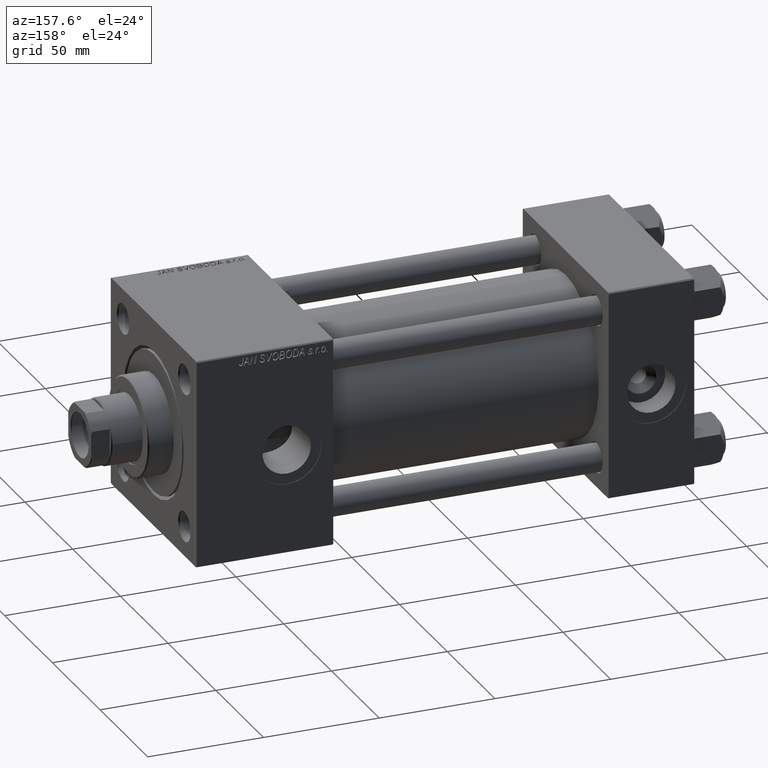
[diagram: clean part render]
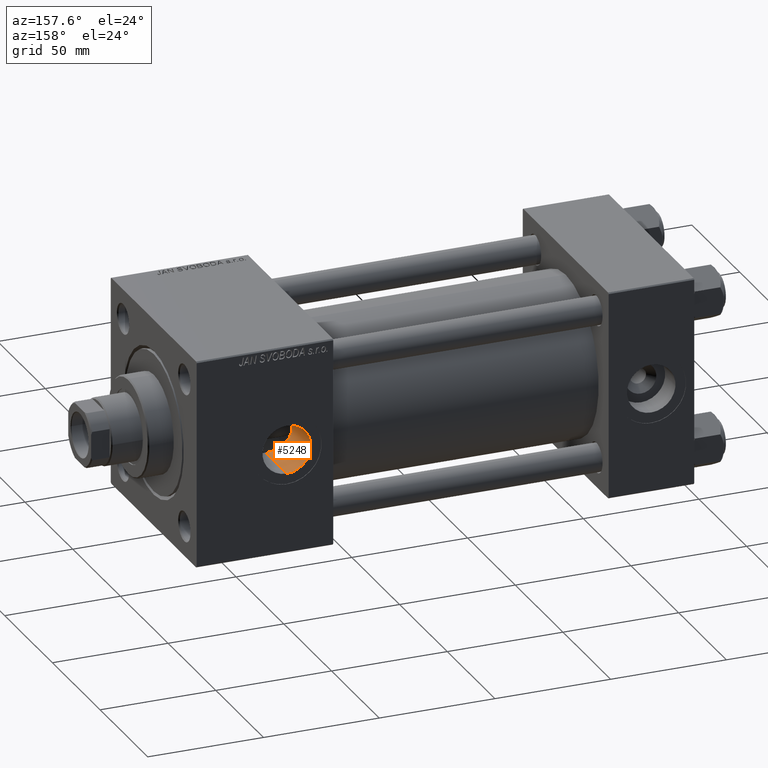
[diagram: same view with one face highlighted and labeled with its STEP entity id]
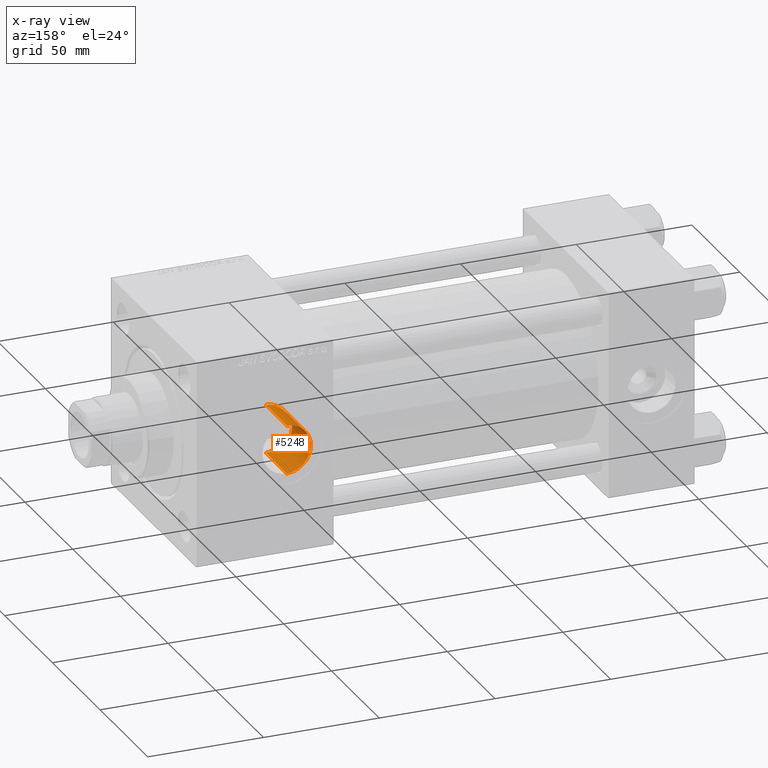
[diagram: x-ray of the same camera — body ghosted, the highlighted face saturated]
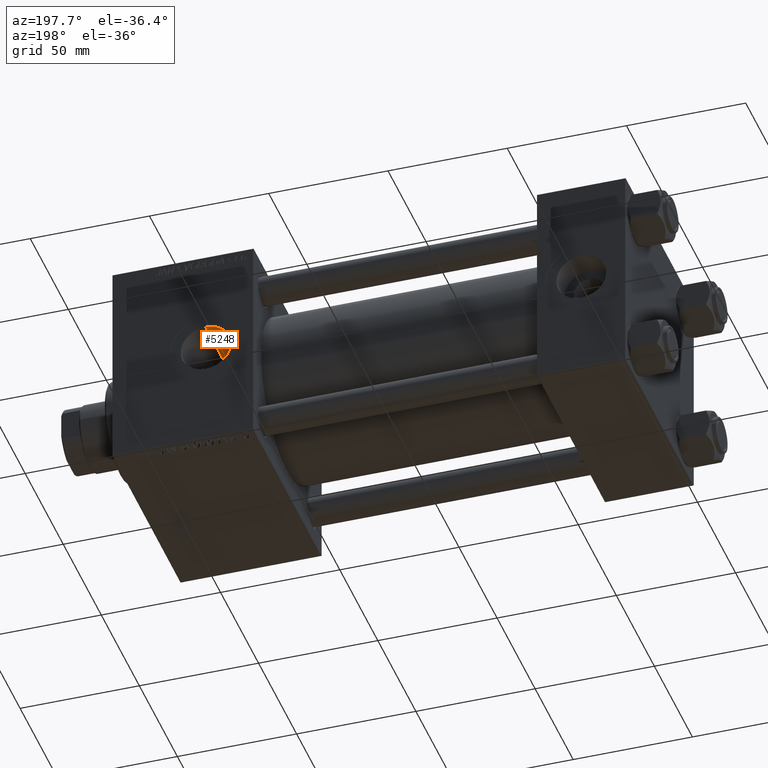
[diagram: same view with one face highlighted and labeled with its STEP entity id]
A machine part, auxiliary view. The second image highlights one B-rep face of the part: STEP entity #5248.
The next image is the same camera in x-ray: the body ghosted, the highlighted face saturated — about 0% of this face is hidden behind the body in this view.
A second angle (auxiliary view) of the same face is appended — the face is thin or edge-on in the first view.
In plain terms, the highlighted cylindrical surface (edge-blend (fillet) strip) has radius 10.48 mm, axis along (0, 1, 0).
Its self-contained STEP definition (entity closure, byte-faithful):
#1567 = CARTESIAN_POINT ( 'NONE',  ( 171.3305262906433200, 23.16436360660826566, -9.407119406203932499 ) ) ;
#1618 = VERTEX_POINT ( 'NONE', #18189 ) ;
#2549 = CARTESIAN_POINT ( 'NONE',  ( 165.5202219243777506, 24.99990696930469980, -0.7020592370721140396 ) ) ;
#3067 = CARTESIAN_POINT ( 'NONE',  ( 165.7929659686116111, 24.88673000804574542, -2.401115563268494846 ) ) ;
#3317 = CARTESIAN_POINT ( 'NONE',  ( 165.6062911791970294, 24.96393005755822259, 1.386124428227898386 ) ) ;
#3575 = CARTESIAN_POINT ( 'NONE',  ( 165.8779669537605628, 24.85189244119416685, 2.737634207123012420 ) ) ;
#5248 = ADVANCED_FACE ( 'NONE', ( #17633 ), #17863, .F. ) ;
#5385 = CARTESIAN_POINT ( 'NONE',  ( 172.6000436906344078, 22.94823602494486536, -9.919209866290790600 ) ) ;
#6492 = EDGE_LOOP ( 'NONE', ( #35809, #13738, #16255, #21196 ) ) ;
#6610 = CARTESIAN_POINT ( 'NONE',  ( 168.3583976685859795, 23.94811038994632924, 7.179864457733663663 ) ) ;
#6868 = DIRECTION ( 'NONE',  ( -0.000000000000000000, 1.000000000000000000, -0.000000000000000000 ) ) ;
#6869 = CARTESIAN_POINT ( 'NONE',  ( 165.8774204008528557, 24.85211448620741237, -2.735702537687458413 ) ) ;
#7370 = CARTESIAN_POINT ( 'NONE',  ( 166.0806528163204518, 24.77003135787058241, 3.399521362015800907 ) ) ;
#8536 = VECTOR ( 'NONE', #23860, 1000.000000000000000 ) ;
#8966 = DIRECTION ( 'NONE',  ( 0.000000000000000000, 0.000000000000000000, 1.000000000000000000 ) ) ;
#9458 = CARTESIAN_POINT ( 'NONE',  ( 167.6900300022859653, 24.16988760624361277, -6.394633543806187426 ) ) ;
#10942 = CARTESIAN_POINT ( 'NONE',  ( 166.9171465358876674, 24.44468804556173325, -5.272058887039579034 ) ) ;
#11191 = CARTESIAN_POINT ( 'NONE',  ( 167.6971979191698381, 24.16742604129797911, 6.403892675369887044 ) ) ;
#12788 = DIRECTION ( 'NONE',  ( 0.000000000000000000, 1.000000000000000000, 0.000000000000000000 ) ) ;
#13267 = CARTESIAN_POINT ( 'NONE',  ( 169.5910252885424541, 23.57840781445655765, -8.320120710421903709 ) ) ;
#13738 = ORIENTED_EDGE ( 'NONE', *, *, #48395, .T. ) ;
#14246 = CARTESIAN_POINT ( 'NONE',  ( 165.7934469296605187, 24.88653244420935096, 2.403216301759338869 ) ) ;
#14493 = CARTESIAN_POINT ( 'NONE',  ( 166.9205644474328665, 24.44339300292596917, 5.278250371298481625 ) ) ;
#14749 = CARTESIAN_POINT ( 'NONE',  ( 171.3377099006112871, 23.16297019228598231, 9.410509118438300291 ) ) ;
#15001 = CARTESIAN_POINT ( 'NONE',  ( 168.1304464638024001, 24.02202805608321867, 6.929393258577144721 ) ) ;
#15252 = CARTESIAN_POINT ( 'NONE',  ( 172.2810024023066831, 22.99792823106281858, 9.803852027551132053 ) ) ;
#16255 = ORIENTED_EDGE ( 'NONE', *, *, #29294, .T. ) ;
#17070 = CARTESIAN_POINT ( 'NONE',  ( 170.7282494435933131, 23.29501474869028499, -9.083392073400743172 ) ) ;
#17565 = CARTESIAN_POINT ( 'NONE',  ( 175.3034659601954104, 22.69734786269092552, -10.47999999999998266 ) ) ;
#17633 = FACE_OUTER_BOUND ( 'NONE', #6492, .T. ) ;
#17863 = CYLINDRICAL_SURFACE ( 'NONE', #43879, 10.47999999999998622 ) ;
#18042 = CARTESIAN_POINT ( 'NONE',  ( 165.6576090084523969, 24.94255044980511826, 1.727461359525257034 ) ) ;
#18189 = CARTESIAN_POINT ( 'NONE',  ( 176.0000000000000000, 44.80000000000000426, -10.47999999999998622 ) ) ;
#18798 = CARTESIAN_POINT ( 'NONE',  ( 166.1986316166709798, 24.72289697108949014, -3.725725694189044201 ) ) ;
#20883 = CARTESIAN_POINT ( 'NONE',  ( 172.2769050068437480, 22.99857768367995803, -9.802338176841910666 ) ) ;
#21196 = ORIENTED_EDGE ( 'NONE', *, *, #21343, .F. ) ;
#21343 = EDGE_CURVE ( 'NONE', #44899, #46944, #25905, .T. ) ;
#22101 = CARTESIAN_POINT ( 'NONE',  ( 176.0000000000000000, -29.64191626734002938, 10.47999999999998622 ) ) ;
#22870 = CARTESIAN_POINT ( 'NONE',  ( 176.0000000000000000, 22.69734786269092908, 10.47999999999998622 ) ) ;
#23114 = CARTESIAN_POINT ( 'NONE',  ( 170.7388075418619451, 23.29260463244820301, 9.089559278086969840 ) ) ;
#23442 = CARTESIAN_POINT ( 'NONE',  ( 176.0000000000000000, 44.80000000000000426, 0.000000000000000000 ) ) ;
#23860 = DIRECTION ( 'NONE',  ( -0.000000000000000000, 1.000000000000000000, -0.000000000000000000 ) ) ;
#24688 = CARTESIAN_POINT ( 'NONE',  ( 174.6166885166040004, 22.72945378449816545, -10.41125041824597552 ) ) ;
#24931 = CARTESIAN_POINT ( 'NONE',  ( 175.9999999999999432, 22.69734786269093618, -10.48000000000000043 ) ) ;
#25905 = LINE ( 'NONE', #22101, #36191 ) ;
#26160 = CARTESIAN_POINT ( 'NONE',  ( 169.0758525530453085, 23.72565358630829380, 7.895767310681530482 ) ) ;
#26426 = CARTESIAN_POINT ( 'NONE',  ( 165.5896143113014034, 24.97059224946896450, -1.388621070306794714 ) ) ;
#26676 = CARTESIAN_POINT ( 'NONE',  ( 165.5374198107919597, 24.99268303089189303, 0.6963761674250704692 ) ) ;
#26922 = CARTESIAN_POINT ( 'NONE',  ( 169.5996881253370248, 23.57603182418388954, 8.326838647318266950 ) ) ;
#26954 = B_SPLINE_CURVE_WITH_KNOTS ( 'NONE', 3,
 ( #24931, #17565, #24688, #33052, #40166, #5385, #20883, #1567, #17070, #13267, #29248, #28759, #44230, #9458, #29749, #10942, #42160, #18798, #41658, #6869, #3067, #26426, #2549, #33790, #26676, #3317, #18042, #14246, #3575, #7370, #45217, #42408, #14493, #34038, #11191, #15001, #6610, #26160, #26922, #23114, #14749, #15252, #34552, #50032, #34294, #49520, #33544, #22870 ),
 .UNSPECIFIED., .F., .F.,
 ( 4, 2, 2, 2, 2, 2, 2, 2, 2, 2, 2, 2, 2, 2, 2, 2, 2, 2, 2, 2, 2, 2, 2, 4 ),
 ( 0.01463821909121455940, 0.01670930280020126862, 0.01774484465469462063, 0.01878038650918797611, 0.02085147021817461074, 0.02292255392716124884, 0.02395809578165453493, 0.02499363763614782102, 0.02706472134513440014, 0.02810026319962768623, 0.02913580505412097579, 0.03120688876310756532, 0.03224243061760086876, 0.03327797247209415832, 0.03431351432658745482, 0.03534905618108075132, 0.03742013989006734431, 0.03845568174456066163, 0.03949122359905397894, 0.04156230730804066215, 0.04363339101702735229, 0.04466893287152065573, 0.04570447472601396610, 0.04777555843500057298 ),
 .UNSPECIFIED. ) ;
#28759 = CARTESIAN_POINT ( 'NONE',  ( 168.3518897779276813, 23.95018848110602860, -7.172942060376085394 ) ) ;
#29248 = CARTESIAN_POINT ( 'NONE',  ( 169.0691750376469429, 23.72760602978987521, -7.889944006337735516 ) ) ;
#29294 = EDGE_CURVE ( 'NONE', #1618, #46944, #49367, .T. ) ;
#29749 = CARTESIAN_POINT ( 'NONE',  ( 167.4852564452334605, 24.24127047932947576, -6.119244249603038810 ) ) ;
#31564 = AXIS2_PLACEMENT_3D ( 'NONE', #23442, #12788, #8966 ) ;
#33052 = CARTESIAN_POINT ( 'NONE',  ( 173.6006309434185368, 22.82132339589592362, -10.20748497981748493 ) ) ;
#33544 = CARTESIAN_POINT ( 'NONE',  ( 175.3073892563824927, 22.69734786269092552, 10.47999999999998799 ) ) ;
#33790 = CARTESIAN_POINT ( 'NONE',  ( 165.5198898269284769, 25.00004618454967087, 0.3460486699088957674 ) ) ;
#34038 = CARTESIAN_POINT ( 'NONE',  ( 167.4914286754354578, 24.23909680393989774, 6.127889787572162739 ) ) ;
#34294 = CARTESIAN_POINT ( 'NONE',  ( 173.6024807966722960, 22.82111456472382116, 10.20795265357758730 ) ) ;
#34552 = CARTESIAN_POINT ( 'NONE',  ( 172.6029776176335133, 22.94782015708122103, 9.920166318359200375 ) ) ;
#35489 = CARTESIAN_POINT ( 'NONE',  ( 175.9999999999999432, 22.69734786269093618, -10.48000000000000043 ) ) ;
#35809 = ORIENTED_EDGE ( 'NONE', *, *, #49039, .F. ) ;
#36191 = VECTOR ( 'NONE', #6868, 1000.000000000000000 ) ;
#36933 = DIRECTION ( 'NONE',  ( 0.000000000000000000, 0.000000000000000000, 1.000000000000000000 ) ) ;
#37168 = CARTESIAN_POINT ( 'NONE',  ( 176.0000000000000000, -29.64191626734002938, 0.000000000000000000 ) ) ;
#40166 = CARTESIAN_POINT ( 'NONE',  ( 173.2625725609530321, 22.85946943249186347, -10.12210048819255803 ) ) ;
#41471 = DIRECTION ( 'NONE',  ( -0.000000000000000000, 1.000000000000000000, -0.000000000000000000 ) ) ;
#41658 = CARTESIAN_POINT ( 'NONE',  ( 166.0804400412437474, 24.77011599629385330, -3.398972836081199933 ) ) ;
#42160 = CARTESIAN_POINT ( 'NONE',  ( 166.5951675388459421, 24.56748508602188963, -4.674328070843602134 ) ) ;
#42408 = CARTESIAN_POINT ( 'NONE',  ( 166.5972116635182658, 24.56669364692477942, 4.678748159390218042 ) ) ;
#43160 = LINE ( 'NONE', #46454, #8536 ) ;
#43302 = CARTESIAN_POINT ( 'NONE',  ( 176.0000000000000000, 22.69734786269092908, 10.47999999999998622 ) ) ;
#43879 = AXIS2_PLACEMENT_3D ( 'NONE', #37168, #41471, #36933 ) ;
#44230 = CARTESIAN_POINT ( 'NONE',  ( 168.1238065727190758, 24.02420213949848815, -6.921886781690114177 ) ) ;
#44394 = CARTESIAN_POINT ( 'NONE',  ( 176.0000000000000000, 44.80000000000000426, 10.47999999999998622 ) ) ;
#44899 = VERTEX_POINT ( 'NONE', #43302 ) ;
#45217 = CARTESIAN_POINT ( 'NONE',  ( 166.1992050399645109, 24.72266741087924657, 3.727330997008750479 ) ) ;
#46454 = CARTESIAN_POINT ( 'NONE',  ( 176.0000000000000000, -29.64191626734002938, -10.47999999999998622 ) ) ;
#46944 = VERTEX_POINT ( 'NONE', #44394 ) ;
#48395 = EDGE_CURVE ( 'NONE', #48696, #1618, #43160, .T. ) ;
#48696 = VERTEX_POINT ( 'NONE', #35489 ) ;
#49039 = EDGE_CURVE ( 'NONE', #48696, #44899, #26954, .T. ) ;
#49367 = CIRCLE ( 'NONE', #31564, 10.47999999999998622 ) ;
#49520 = CARTESIAN_POINT ( 'NONE',  ( 174.6214610596253749, 22.72910592596696233, 10.41201292843504156 ) ) ;
#50032 = CARTESIAN_POINT ( 'NONE',  ( 173.2628663816417998, 22.85945295365116081, 10.12213220648004253 ) ) ;